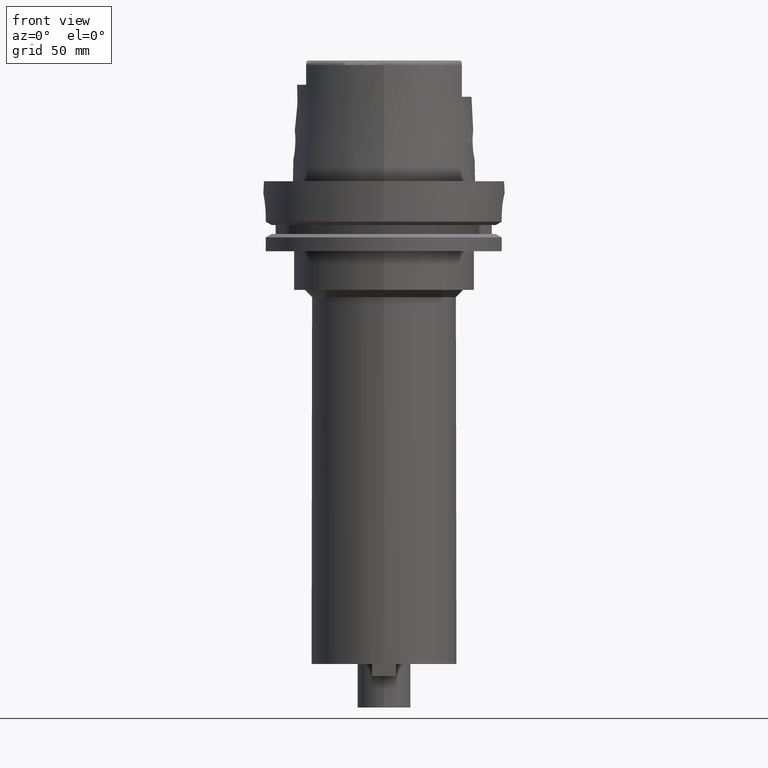
[diagram: clean part render]
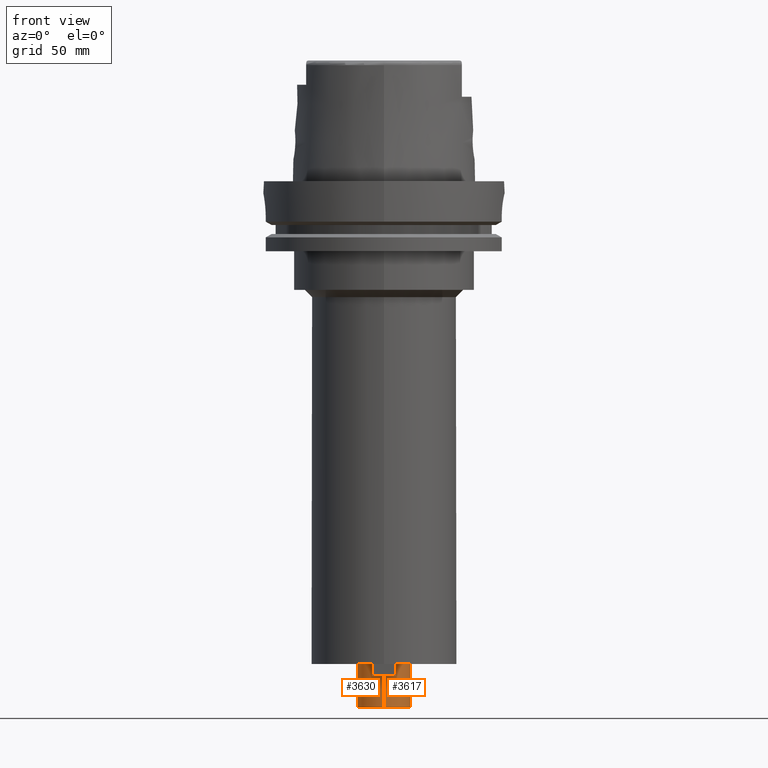
[diagram: same view with one multi-face feature highlighted, each face labeled with its STEP entity id]
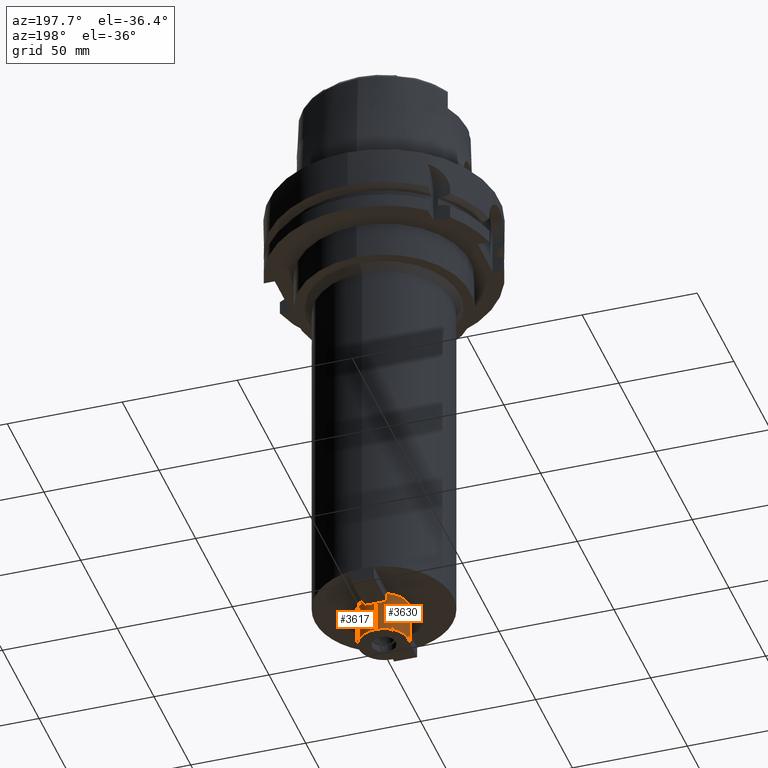
[diagram: same view with one multi-face feature highlighted, each face labeled with its STEP entity id]
A machine part, front view. The highlighted faces form ONE feature: a constant-radius fillet chain: 2 tangent blend faces with common blend radius 11 mm. The faces share edges in the B-rep.
A second angle (auxiliary view) of the same feature is appended — it is thin or edge-on in the first view.
Their STEP definitions:
[1] entity #3630 (Cylinder):
#1091=CARTESIAN_POINT('',(0.E0,0.E0,-2.18E2));
#1092=DIRECTION('',(0.E0,0.E0,1.E0));
#1093=DIRECTION('',(0.E0,1.E0,0.E0));
#1094=AXIS2_PLACEMENT_3D('',#1091,#1092,#1093);
#1115=DIRECTION('',(0.E0,0.E0,-1.E0));
#1116=VECTOR('',#1115,1.8E1);
#1117=CARTESIAN_POINT('',(0.E0,1.1E1,-2.E2));
#1118=LINE('',#1117,#1116);
#1122=DIRECTION('',(0.E0,0.E0,-1.E0));
#1123=VECTOR('',#1122,1.8E1);
#1124=CARTESIAN_POINT('',(0.E0,-1.1E1,-2.E2));
#1125=LINE('',#1124,#1123);
#1145=CARTESIAN_POINT('',(0.E0,0.E0,-2.E2));
#1146=DIRECTION('',(0.E0,0.E0,-1.E0));
#1147=DIRECTION('',(0.E0,-1.E0,0.E0));
#1148=AXIS2_PLACEMENT_3D('',#1145,#1146,#1147);
#2600=CARTESIAN_POINT('',(0.E0,-1.1E1,-2.18E2));
#2601=CARTESIAN_POINT('',(0.E0,1.1E1,-2.18E2));
#2602=VERTEX_POINT('',#2600);
#2603=VERTEX_POINT('',#2601);
#2604=CARTESIAN_POINT('',(0.E0,1.1E1,-2.E2));
#2605=VERTEX_POINT('',#2604);
#2606=CARTESIAN_POINT('',(0.E0,-1.1E1,-2.E2));
#2607=VERTEX_POINT('',#2606);
#3618=CARTESIAN_POINT('',(0.E0,0.E0,-2.314E2));
#3619=DIRECTION('',(0.E0,0.E0,1.E0));
#3620=DIRECTION('',(0.E0,1.E0,0.E0));
#3621=AXIS2_PLACEMENT_3D('',#3618,#3619,#3620);
#3622=CYLINDRICAL_SURFACE('',#3621,1.1E1);
#3623=ORIENTED_EDGE('',*,*,#3608,.F.);
#3625=ORIENTED_EDGE('',*,*,#3624,.F.);
#3626=ORIENTED_EDGE('',*,*,#3611,.T.);
#3627=ORIENTED_EDGE('',*,*,#3594,.F.);
#3628=EDGE_LOOP('',(#3623,#3625,#3626,#3627));
#3629=FACE_OUTER_BOUND('',#3628,.F.);
#1095=CIRCLE('',#1094,1.1E1);
#1149=CIRCLE('',#1148,1.1E1);
#3594=EDGE_CURVE('',#2603,#2602,#1095,.T.);
#3608=EDGE_CURVE('',#2605,#2603,#1118,.T.);
#3611=EDGE_CURVE('',#2607,#2602,#1125,.T.);
#3624=EDGE_CURVE('',#2607,#2605,#1149,.T.);
#3630=ADVANCED_FACE('',(#3629),#3622,.T.);
[2] entity #3617 (Cylinder):
#1083=CARTESIAN_POINT('',(0.E0,0.E0,-2.18E2));
#1084=DIRECTION('',(0.E0,0.E0,1.E0));
#1085=DIRECTION('',(0.E0,-1.E0,0.E0));
#1086=AXIS2_PLACEMENT_3D('',#1083,#1084,#1085);
#1115=DIRECTION('',(0.E0,0.E0,-1.E0));
#1116=VECTOR('',#1115,1.8E1);
#1117=CARTESIAN_POINT('',(0.E0,1.1E1,-2.E2));
#1118=LINE('',#1117,#1116);
#1122=DIRECTION('',(0.E0,0.E0,-1.E0));
#1123=VECTOR('',#1122,1.8E1);
#1124=CARTESIAN_POINT('',(0.E0,-1.1E1,-2.E2));
#1125=LINE('',#1124,#1123);
#1153=CARTESIAN_POINT('',(0.E0,0.E0,-2.E2));
#1154=DIRECTION('',(0.E0,0.E0,-1.E0));
#1155=DIRECTION('',(0.E0,1.E0,0.E0));
#1156=AXIS2_PLACEMENT_3D('',#1153,#1154,#1155);
#2600=CARTESIAN_POINT('',(0.E0,-1.1E1,-2.18E2));
#2601=CARTESIAN_POINT('',(0.E0,1.1E1,-2.18E2));
#2602=VERTEX_POINT('',#2600);
#2603=VERTEX_POINT('',#2601);
#2604=CARTESIAN_POINT('',(0.E0,1.1E1,-2.E2));
#2605=VERTEX_POINT('',#2604);
#2606=CARTESIAN_POINT('',(0.E0,-1.1E1,-2.E2));
#2607=VERTEX_POINT('',#2606);
#3603=CARTESIAN_POINT('',(0.E0,0.E0,-2.314E2));
#3604=DIRECTION('',(0.E0,0.E0,1.E0));
#3605=DIRECTION('',(0.E0,1.E0,0.E0));
#3606=AXIS2_PLACEMENT_3D('',#3603,#3604,#3605);
#3607=CYLINDRICAL_SURFACE('',#3606,1.1E1);
#3609=ORIENTED_EDGE('',*,*,#3608,.T.);
#3610=ORIENTED_EDGE('',*,*,#3592,.F.);
#3612=ORIENTED_EDGE('',*,*,#3611,.F.);
#3614=ORIENTED_EDGE('',*,*,#3613,.F.);
#3615=EDGE_LOOP('',(#3609,#3610,#3612,#3614));
#3616=FACE_OUTER_BOUND('',#3615,.F.);
#1087=CIRCLE('',#1086,1.1E1);
#1157=CIRCLE('',#1156,1.1E1);
#3592=EDGE_CURVE('',#2602,#2603,#1087,.T.);
#3608=EDGE_CURVE('',#2605,#2603,#1118,.T.);
#3611=EDGE_CURVE('',#2607,#2602,#1125,.T.);
#3613=EDGE_CURVE('',#2605,#2607,#1157,.T.);
#3617=ADVANCED_FACE('',(#3616),#3607,.T.);